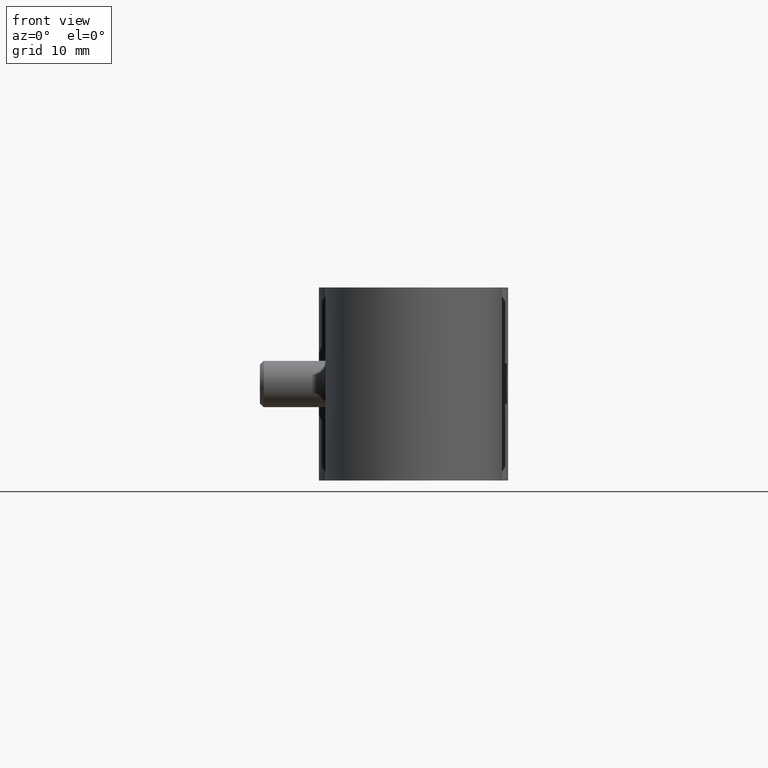
[diagram: clean part render]
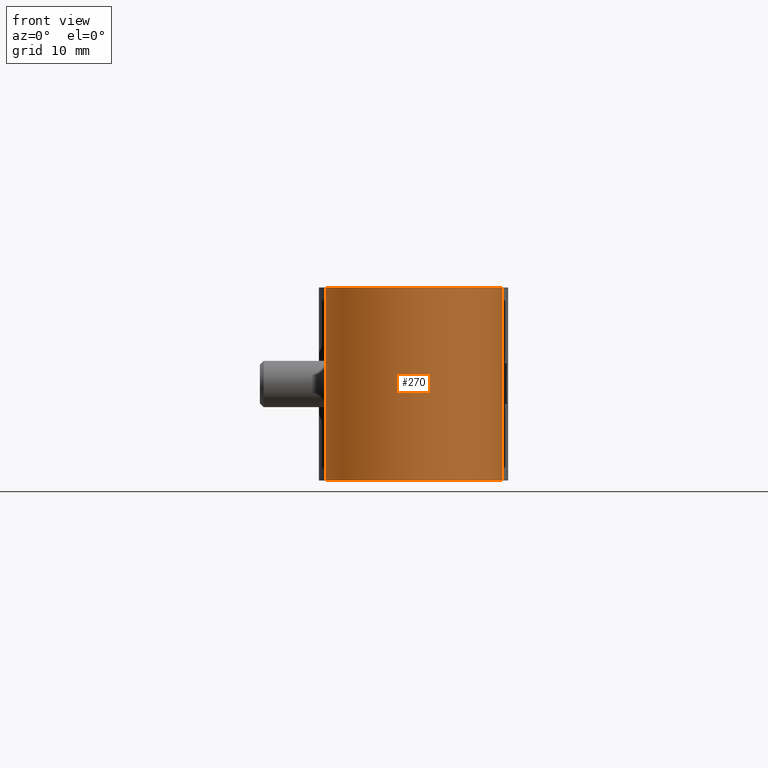
[diagram: same view with one face highlighted and labeled with its STEP entity id]
A machine part, front view. The second image highlights one B-rep face of the part: STEP entity #270.
In plain terms, the highlighted cylindrical surface (partial cylindrical patch) has radius 11.45 mm, axis along (0, 0, -1).
Its self-contained STEP definition (entity closure, byte-faithful):
#270 = ADVANCED_FACE( '', ( #396 ), #397, .T. );
#396 = FACE_OUTER_BOUND( '', #668, .T. );
#397 = CYLINDRICAL_SURFACE( '', #669, 11.4500000000000 );
#668 = EDGE_LOOP( '', ( #963, #964, #965, #966, #967, #968, #969, #970, #971, #972, #973, #974 ) );
#669 = AXIS2_PLACEMENT_3D( '', #975, #976, #977 );
#963 = ORIENTED_EDGE( '', *, *, #1953, .F. );
#964 = ORIENTED_EDGE( '', *, *, #1952, .T. );
#965 = ORIENTED_EDGE( '', *, *, #1954, .F. );
#966 = ORIENTED_EDGE( '', *, *, #1955, .F. );
#967 = ORIENTED_EDGE( '', *, *, #1956, .F. );
#968 = ORIENTED_EDGE( '', *, *, #1957, .F. );
#969 = ORIENTED_EDGE( '', *, *, #1958, .F. );
#970 = ORIENTED_EDGE( '', *, *, #1959, .F. );
#971 = ORIENTED_EDGE( '', *, *, #1941, .T. );
#972 = ORIENTED_EDGE( '', *, *, #1960, .T. );
#973 = ORIENTED_EDGE( '', *, *, #1961, .F. );
#974 = ORIENTED_EDGE( '', *, *, #1962, .F. );
#975 = CARTESIAN_POINT( '', ( 0.000000000000000, 0.000000000000000, -12.5000000000000 ) );
#976 = DIRECTION( '', ( 0.000000000000000, 0.000000000000000, -1.00000000000000 ) );
#977 = DIRECTION( '', ( -1.00000000000000, 6.06692130572647E-017, 0.000000000000000 ) );
#1941 = EDGE_CURVE( '', #2266, #2264, #2267, .T. );
#1952 = EDGE_CURVE( '', #2281, #2285, #2287, .T. );
#1953 = EDGE_CURVE( '', #2281, #2288, #2289, .F. );
#1954 = EDGE_CURVE( '', #2290, #2285, #2291, .T. );
#1955 = EDGE_CURVE( '', #2292, #2290, #2293, .T. );
#1956 = EDGE_CURVE( '', #2294, #2292, #2295, .F. );
#1957 = EDGE_CURVE( '', #2296, #2294, #2297, .T. );
#1958 = EDGE_CURVE( '', #2298, #2296, #2299, .F. );
#1959 = EDGE_CURVE( '', #2266, #2298, #2300, .T. );
#1960 = EDGE_CURVE( '', #2264, #2301, #2302, .T. );
#1961 = EDGE_CURVE( '', #2303, #2301, #2304, .F. );
#1962 = EDGE_CURVE( '', #2288, #2303, #2305, .T. );
#2264 = VERTEX_POINT( '', #2800 );
#2266 = VERTEX_POINT( '', #2802 );
#2267 = CIRCLE( '', #2803, 11.4500000000000 );
#2281 = VERTEX_POINT( '', #2821 );
#2285 = VERTEX_POINT( '', #2826 );
#2287 = LINE( '', #2828, #2829 );
#2288 = VERTEX_POINT( '', #2830 );
#2289 = ELLIPSE( '', #2831, 19.9624658098615, 11.4500000000000 );
#2290 = VERTEX_POINT( '', #2832 );
#2291 = CIRCLE( '', #2833, 11.4500000000000 );
#2292 = VERTEX_POINT( '', #2834 );
#2293 = LINE( '', #2835, #2836 );
#2294 = VERTEX_POINT( '', #2837 );
#2295 = ELLIPSE( '', #2838, 19.9624658098615, 11.4500000000000 );
#2296 = VERTEX_POINT( '', #2839 );
#2297 = B_SPLINE_CURVE_WITH_KNOTS( '', 3, ( #2840, #2841, #2842, #2843, #2844, #2845, #2846, #2847, #2848, #2849, #2850, #2851, #2852, #2853, #2854, #2855, #2856, #2857, #2858, #2859, #2860, #2861, #2862, #2863 ), .UNSPECIFIED., .F., .F., ( 4, 2, 2, 2, 2, 2, 2, 2, 2, 2, 2, 4 ), ( 0.000000000000000, 0.000813964375534881, 0.00162792875106976, 0.00244189312660464, 0.00284887531437209, 0.00325585750213952, 0.00366283968990697, 0.00406982187767441, 0.00447680406544185, 0.00488378625320928, 0.00569775062874417, 0.00651171500427905 ), .UNSPECIFIED. );
#2298 = VERTEX_POINT( '', #2864 );
#2299 = ELLIPSE( '', #2865, 19.9624658098615, 11.4500000000000 );
#2300 = LINE( '', #2866, #2867 );
#2301 = VERTEX_POINT( '', #2868 );
#2302 = LINE( '', #2869, #2870 );
#2303 = VERTEX_POINT( '', #2871 );
#2304 = ELLIPSE( '', #2872, 19.9624658098615, 11.4500000000000 );
#2305 = B_SPLINE_CURVE_WITH_KNOTS( '', 3, ( #2873, #2874, #2875, #2876, #2877, #2878, #2879, #2880, #2881, #2882, #2883, #2884, #2885, #2886, #2887, #2888, #2889, #2890, #2891, #2892, #2893, #2894, #2895, #2896 ), .UNSPECIFIED., .F., .F., ( 4, 2, 2, 2, 2, 2, 2, 2, 2, 2, 2, 4 ), ( 0.000000000000000, 0.000813964375534879, 0.00162792875106976, 0.00244189312660464, 0.00284887531437208, 0.00325585750213952, 0.00366283968990696, 0.00406982187767440, 0.00447680406544184, 0.00488378625320928, 0.00569775062874417, 0.00651171500427906 ), .UNSPECIFIED. );
#2800 = CARTESIAN_POINT( '', ( 5.79182879377431, 9.87710581210946, -12.5000000000000 ) );
#2802 = CARTESIAN_POINT( '', ( -5.79182879377432, 9.87710581210947, -12.5000000000000 ) );
#2803 = AXIS2_PLACEMENT_3D( '', #3710, #3711, #3712 );
#2821 = CARTESIAN_POINT( '', ( 5.79182879377431, 9.87710581210948, 3.35189861841452 ) );
#2826 = CARTESIAN_POINT( '', ( 5.79182879377431, 9.87710581210948, 12.5000000000000 ) );
#2828 = CARTESIAN_POINT( '', ( 5.79182879377431, 9.87710581210948, -12.5000000000000 ) );
#2829 = VECTOR( '', #3733, 1000.00000000000 );
#2830 = CARTESIAN_POINT( '', ( 7.06421972431640, 9.01106540241381, 2.29430574540415 ) );
#2831 = AXIS2_PLACEMENT_3D( '', #3734, #3735, #3736 );
#2832 = CARTESIAN_POINT( '', ( -5.79182879377431, 9.87710581210946, 12.5000000000000 ) );
#2833 = AXIS2_PLACEMENT_3D( '', #3737, #3738, #3739 );
#2834 = CARTESIAN_POINT( '', ( -5.79182879377431, 9.87710581210946, 3.35189861841453 ) );
#2835 = CARTESIAN_POINT( '', ( -5.79182879377431, 9.87710581210946, -12.5000000000000 ) );
#2836 = VECTOR( '', #3740, 1000.00000000000 );
#2837 = CARTESIAN_POINT( '', ( -7.06421972431641, 9.01106540241380, 2.29430574540414 ) );
#2838 = AXIS2_PLACEMENT_3D( '', #3741, #3742, #3743 );
#2839 = CARTESIAN_POINT( '', ( -7.06421972431639, 9.01106540241381, -2.29430574540425 ) );
#2840 = CARTESIAN_POINT( '', ( -7.06421972431639, 9.01106540241381, -2.29430574540426 ) );
#2841 = CARTESIAN_POINT( '', ( -7.24849411693981, 8.86660359452282, -2.15348264320985 ) );
#2842 = CARTESIAN_POINT( '', ( -7.42406779250332, 8.71981064114640, -2.00615455554227 ) );
#2843 = CARTESIAN_POINT( '', ( -7.75681037535511, 8.42518682320568, -1.69426396507575 ) );
#2844 = CARTESIAN_POINT( '', ( -7.91413582756302, 8.27713743327353, -1.53005094416357 ) );
#2845 = CARTESIAN_POINT( '', ( -8.20544029114441, 7.98844788522015, -1.17197607910585 ) );
#2846 = CARTESIAN_POINT( '', ( -8.34131774380989, 7.84542569113134, -0.977533768734046 ) );
#2847 = CARTESIAN_POINT( '', ( -8.50386670000559, 7.66767224411042, -0.643915149093024 ) );
#2848 = CARTESIAN_POINT( '', ( -8.55096925267696, 7.61485482301063, -0.524977087707200 ) );
#2849 = CARTESIAN_POINT( '', ( -8.61831067592647, 7.53855491649208, -0.271498246087856 ) );
#2850 = CARTESIAN_POINT( '', ( -8.63816627146913, 7.51562263560614, -0.134554874103567 ) );
#2851 = CARTESIAN_POINT( '', ( -8.63768501537982, 7.51617573699983, 0.139737647556450 ) );
#2852 = CARTESIAN_POINT( '', ( -8.61761512653238, 7.53935833307047, 0.275838841075659 ) );
#2853 = CARTESIAN_POINT( '', ( -8.54864655035130, 7.61747049227273, 0.531919828015272 ) );
#2854 = CARTESIAN_POINT( '', ( -8.50173524049494, 7.67003525497151, 0.648864127433976 ) );
#2855 = CARTESIAN_POINT( '', ( -8.39336669536588, 7.78847471775457, 0.870110037830054 ) );
#2856 = CARTESIAN_POINT( '', ( -8.33156773207292, 7.85470465133683, 0.974352858434481 ) );
#2857 = CARTESIAN_POINT( '', ( -8.20096648059485, 7.99096707651902, 1.17023145629417 ) );
#2858 = CARTESIAN_POINT( '', ( -8.13164058218736, 8.06159495830066, 1.26273001445010 ) );
#2859 = CARTESIAN_POINT( '', ( -7.91440494357763, 8.27685095355560, 1.52964276192343 ) );
#2860 = CARTESIAN_POINT( '', ( -7.75736693997640, 8.42468338592472, 1.69372066330540 ) );
#2861 = CARTESIAN_POINT( '', ( -7.42412388690106, 8.71977158568157, 2.00612355211952 ) );
#2862 = CARTESIAN_POINT( '', ( -7.24801136807693, 8.86698204522611, 2.15385156149233 ) );
#2863 = CARTESIAN_POINT( '', ( -7.06421972431640, 9.01106540241380, 2.29430574540414 ) );
#2864 = CARTESIAN_POINT( '', ( -5.79182879377431, 9.87710581210946, -3.35189861841461 ) );
#2865 = AXIS2_PLACEMENT_3D( '', #3744, #3745, #3746 );
#2866 = CARTESIAN_POINT( '', ( -5.79182879377431, 9.87710581210946, -12.5000000000000 ) );
#2867 = VECTOR( '', #3747, 1000.00000000000 );
#2868 = CARTESIAN_POINT( '', ( 5.79182879377431, 9.87710581210948, -3.35189861841461 ) );
#2869 = CARTESIAN_POINT( '', ( 5.79182879377431, 9.87710581210948, -12.5000000000000 ) );
#2870 = VECTOR( '', #3748, 1000.00000000000 );
#2871 = CARTESIAN_POINT( '', ( 7.06421972431639, 9.01106540241381, -2.29430574540425 ) );
#2872 = AXIS2_PLACEMENT_3D( '', #3749, #3750, #3751 );
#2873 = CARTESIAN_POINT( '', ( 7.06421972431640, 9.01106540241381, 2.29430574540415 ) );
#2874 = CARTESIAN_POINT( '', ( 7.24849411693982, 8.86660359452281, 2.15348264320974 ) );
#2875 = CARTESIAN_POINT( '', ( 7.42406779250333, 8.71981064114640, 2.00615455554216 ) );
#2876 = CARTESIAN_POINT( '', ( 7.75681037535511, 8.42518682320567, 1.69426396507563 ) );
#2877 = CARTESIAN_POINT( '', ( 7.91413582756302, 8.27713743327352, 1.53005094416345 ) );
#2878 = CARTESIAN_POINT( '', ( 8.20544029114441, 7.98844788522015, 1.17197607910573 ) );
#2879 = CARTESIAN_POINT( '', ( 8.34131774380989, 7.84542569113133, 0.977533768733928 ) );
#2880 = CARTESIAN_POINT( '', ( 8.50386670000560, 7.66767224411041, 0.643915149092905 ) );
#2881 = CARTESIAN_POINT( '', ( 8.55096925267696, 7.61485482301063, 0.524977087707079 ) );
#2882 = CARTESIAN_POINT( '', ( 8.61831067592647, 7.53855491649207, 0.271498246087733 ) );
#2883 = CARTESIAN_POINT( '', ( 8.63816627146913, 7.51562263560614, 0.134554874103442 ) );
#2884 = CARTESIAN_POINT( '', ( 8.63768501537982, 7.51617573699984, -0.139737647556576 ) );
#2885 = CARTESIAN_POINT( '', ( 8.61761512653238, 7.53935833307047, -0.275838841075784 ) );
#2886 = CARTESIAN_POINT( '', ( 8.54864655035130, 7.61747049227273, -0.531919828015397 ) );
#2887 = CARTESIAN_POINT( '', ( 8.50173524049494, 7.67003525497151, -0.648864127434099 ) );
#2888 = CARTESIAN_POINT( '', ( 8.39336669536588, 7.78847471775458, -0.870110037830177 ) );
#2889 = CARTESIAN_POINT( '', ( 8.33156773207291, 7.85470465133684, -0.974352858434603 ) );
#2890 = CARTESIAN_POINT( '', ( 8.20096648059483, 7.99096707651903, -1.17023145629429 ) );
#2891 = CARTESIAN_POINT( '', ( 8.13164058218736, 8.06159495830067, -1.26273001445022 ) );
#2892 = CARTESIAN_POINT( '', ( 7.91440494357762, 8.27685095355560, -1.52964276192355 ) );
#2893 = CARTESIAN_POINT( '', ( 7.75736693997638, 8.42468338592472, -1.69372066330552 ) );
#2894 = CARTESIAN_POINT( '', ( 7.42412388690105, 8.71977158568158, -2.00612355211964 ) );
#2895 = CARTESIAN_POINT( '', ( 7.24801136807692, 8.86698204522611, -2.15385156149244 ) );
#2896 = CARTESIAN_POINT( '', ( 7.06421972431639, 9.01106540241381, -2.29430574540426 ) );
#3710 = CARTESIAN_POINT( '', ( 0.000000000000000, 0.000000000000000, -12.5000000000000 ) );
#3711 = DIRECTION( '', ( 0.000000000000000, 0.000000000000000, 1.00000000000000 ) );
#3712 = DIRECTION( '', ( 1.00000000000000, 0.000000000000000, 0.000000000000000 ) );
#3733 = DIRECTION( '', ( 0.000000000000000, 0.000000000000000, 1.00000000000000 ) );
#3734 = CARTESIAN_POINT( '', ( 0.000000000000000, 0.000000000000000, 17.1259140631987 ) );
#3735 = DIRECTION( '', ( 0.729869815763729, 0.371887245949430, 0.573576436351048 ) );
#3736 = DIRECTION( '', ( -0.511060346909498, -0.260398252977841, 0.819152044288990 ) );
#3737 = CARTESIAN_POINT( '', ( 0.000000000000000, 0.000000000000000, 12.5000000000000 ) );
#3738 = DIRECTION( '', ( 0.000000000000000, 0.000000000000000, 1.00000000000000 ) );
#3739 = DIRECTION( '', ( 1.00000000000000, 0.000000000000000, 0.000000000000000 ) );
#3740 = DIRECTION( '', ( 0.000000000000000, 0.000000000000000, 1.00000000000000 ) );
#3741 = CARTESIAN_POINT( '', ( 0.000000000000000, 0.000000000000000, 17.1259140631987 ) );
#3742 = DIRECTION( '', ( -0.729869815763729, 0.371887245949430, 0.573576436351048 ) );
#3743 = DIRECTION( '', ( 0.511060346909498, -0.260398252977841, 0.819152044288990 ) );
#3744 = CARTESIAN_POINT( '', ( 0.000000000000000, 0.000000000000000, -17.1259140631988 ) );
#3745 = DIRECTION( '', ( -0.729869815763728, 0.371887245949431, -0.573576436351049 ) );
#3746 = DIRECTION( '', ( -0.511060346909498, 0.260398252977842, 0.819152044288990 ) );
#3747 = DIRECTION( '', ( 0.000000000000000, 0.000000000000000, 1.00000000000000 ) );
#3748 = DIRECTION( '', ( 0.000000000000000, 0.000000000000000, 1.00000000000000 ) );
#3749 = CARTESIAN_POINT( '', ( 0.000000000000000, 0.000000000000000, -17.1259140631988 ) );
#3750 = DIRECTION( '', ( 0.729869815763728, 0.371887245949431, -0.573576436351049 ) );
#3751 = DIRECTION( '', ( 0.511060346909498, 0.260398252977842, 0.819152044288990 ) );